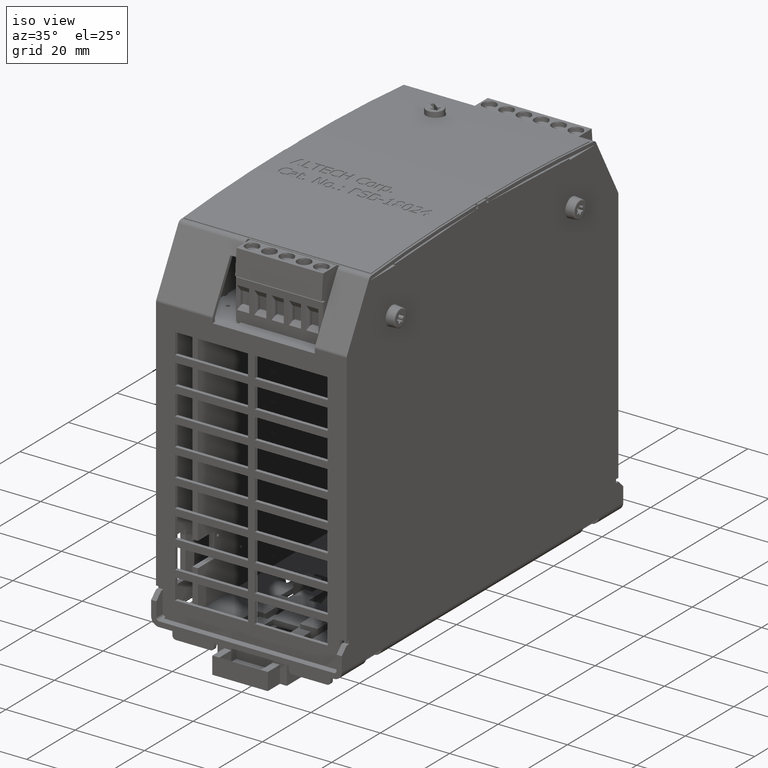
[diagram: clean part render]
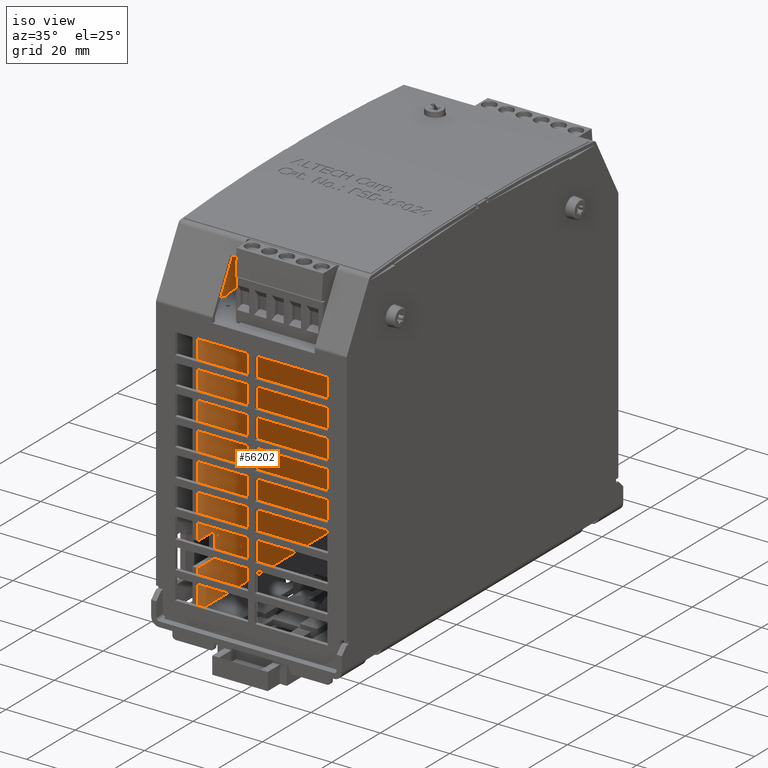
[diagram: same view with one face highlighted and labeled with its STEP entity id]
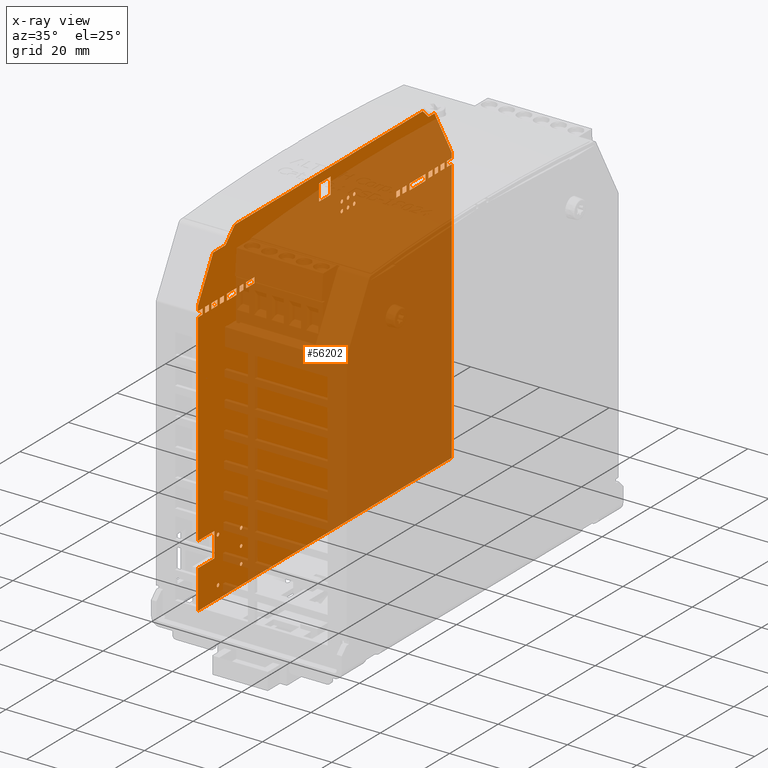
[diagram: x-ray of the same camera — body ghosted, the highlighted face saturated]
A machine part, iso view. The second image highlights one B-rep face of the part: STEP entity #56202.
The next image is the same camera in x-ray: the body ghosted, the highlighted face saturated — about 72% of this face is hidden behind the body in this view.
In plain terms, the highlighted planar face has unit normal (1, 0, 0).
Its self-contained STEP definition (entity closure, byte-faithful):
#27094=CARTESIAN_POINT('',(-0.70866141732277,1.942039370078739,3.169708661417326));
#27095=VERTEX_POINT('',#27094);
#27096=CARTESIAN_POINT('',(-0.70866141732277,1.87903937007874,3.169708661417326));
#27097=VERTEX_POINT('',#27096);
#27098=CARTESIAN_POINT('',(-0.70866141732277,1.942039370078739,3.169708661417326));
#27099=DIRECTION('',(0.0,-1.0,0.0));
#27100=VECTOR('',#27099,0.062999999999999);
#27101=LINE('',#27098,#27100);
#27102=EDGE_CURVE('',#27095,#27097,#27101,.T.);
#27120=CARTESIAN_POINT('',(-0.70866141732277,1.980039370078739,3.169708661417326));
#27121=VERTEX_POINT('',#27120);
#27128=CARTESIAN_POINT('',(-0.70866141732277,2.058897637795275,3.169708661417326));
#27129=VERTEX_POINT('',#27128);
#27130=CARTESIAN_POINT('',(-0.70866141732277,2.058897637795275,3.169708661417326));
#27131=DIRECTION('',(0.0,-1.0,0.0));
#27132=VECTOR('',#27131,0.078858267716536);
#27133=LINE('',#27130,#27132);
#27134=EDGE_CURVE('',#27129,#27121,#27133,.T.);
#27176=CARTESIAN_POINT('',(-0.70866141732277,1.159039370078739,3.169708661417326));
#27177=VERTEX_POINT('',#27176);
#27184=CARTESIAN_POINT('',(-0.70866141732277,1.219039370078739,3.169708661417326));
#27185=VERTEX_POINT('',#27184);
#27186=CARTESIAN_POINT('',(-0.70866141732277,1.21903937007874,3.169708661417326));
#27187=DIRECTION('',(0.0,-1.0,0.0));
#27188=VECTOR('',#27187,0.06);
#27189=LINE('',#27186,#27188);
#27190=EDGE_CURVE('',#27185,#27177,#27189,.T.);
#27208=CARTESIAN_POINT('',(-0.70866141732277,1.25903937007874,3.169708661417326));
#27209=VERTEX_POINT('',#27208);
#27216=CARTESIAN_POINT('',(-0.70866141732277,1.322039370078739,3.169708661417326));
#27217=VERTEX_POINT('',#27216);
#27218=CARTESIAN_POINT('',(-0.70866141732277,1.322039370078739,3.169708661417326));
#27219=DIRECTION('',(0.0,-1.0,0.0));
#27220=VECTOR('',#27219,0.063);
#27221=LINE('',#27218,#27220);
#27222=EDGE_CURVE('',#27217,#27209,#27221,.T.);
#27288=CARTESIAN_POINT('',(-0.70866141732277,1.67903937007874,3.169708661417326));
#27289=VERTEX_POINT('',#27288);
#27296=CARTESIAN_POINT('',(-0.70866141732277,1.74203937007874,3.169708661417326));
#27297=VERTEX_POINT('',#27296);
#27298=CARTESIAN_POINT('',(-0.70866141732277,1.74203937007874,3.169708661417326));
#27299=DIRECTION('',(0.0,-1.0,0.0));
#27300=VECTOR('',#27299,0.063);
#27301=LINE('',#27298,#27300);
#27302=EDGE_CURVE('',#27297,#27289,#27301,.T.);
#27320=CARTESIAN_POINT('',(-0.70866141732277,1.783039370078739,3.169708661417326));
#27321=VERTEX_POINT('',#27320);
#27328=CARTESIAN_POINT('',(-0.70866141732277,1.838039370078739,3.169708661417326));
#27329=VERTEX_POINT('',#27328);
#27330=CARTESIAN_POINT('',(-0.70866141732277,1.838039370078739,3.169708661417326));
#27331=DIRECTION('',(0.0,-1.0,0.0));
#27332=VECTOR('',#27331,0.055);
#27333=LINE('',#27330,#27332);
#27334=EDGE_CURVE('',#27329,#27321,#27333,.T.);
#32274=CARTESIAN_POINT('',(-0.70866141732277,1.87903937007874,3.232700787401578));
#32275=VERTEX_POINT('',#32274);
#32276=CARTESIAN_POINT('',(-0.70866141732277,1.942039370078739,3.232700787401578));
#32277=VERTEX_POINT('',#32276);
#32278=CARTESIAN_POINT('',(-0.70866141732277,1.87903937007874,3.232700787401578));
#32279=DIRECTION('',(0.0,1.0,0.0));
#32280=VECTOR('',#32279,0.062999999999999);
#32281=LINE('',#32278,#32280);
#32282=EDGE_CURVE('',#32275,#32277,#32281,.T.);
#32300=CARTESIAN_POINT('',(-0.70866141732277,1.838039370078739,3.232700787401578));
#32301=VERTEX_POINT('',#32300);
#32308=CARTESIAN_POINT('',(-0.70866141732277,1.783039370078739,3.232700787401578));
#32309=VERTEX_POINT('',#32308);
#32310=CARTESIAN_POINT('',(-0.70866141732277,1.783039370078739,3.232700787401578));
#32311=DIRECTION('',(0.0,1.0,0.0));
#32312=VECTOR('',#32311,0.055);
#32313=LINE('',#32310,#32312);
#32314=EDGE_CURVE('',#32309,#32301,#32313,.T.);
#32332=CARTESIAN_POINT('',(-0.70866141732277,1.74203937007874,3.232700787401578));
#32333=VERTEX_POINT('',#32332);
#32340=CARTESIAN_POINT('',(-0.70866141732277,1.67903937007874,3.232700787401578));
#32341=VERTEX_POINT('',#32340);
#32342=CARTESIAN_POINT('',(-0.70866141732277,1.67903937007874,3.232700787401578));
#32343=DIRECTION('',(0.0,1.0,0.0));
#32344=VECTOR('',#32343,0.063);
#32345=LINE('',#32342,#32344);
#32346=EDGE_CURVE('',#32341,#32333,#32345,.T.);
#32364=CARTESIAN_POINT('',(-0.70866141732277,1.620039370078739,3.232700787401578));
#32365=VERTEX_POINT('',#32364);
#32372=CARTESIAN_POINT('',(-0.70866141732277,1.382039370078739,3.232700787401578));
#32373=VERTEX_POINT('',#32372);
#32374=CARTESIAN_POINT('',(-0.70866141732277,1.382039370078739,3.232700787401578));
#32375=DIRECTION('',(0.0,1.0,0.0));
#32376=VECTOR('',#32375,0.238);
#32377=LINE('',#32374,#32376);
#32378=EDGE_CURVE('',#32373,#32365,#32377,.T.);
#32396=CARTESIAN_POINT('',(-0.70866141732277,1.322039370078739,3.232700787401578));
#32397=VERTEX_POINT('',#32396);
#32404=CARTESIAN_POINT('',(-0.70866141732277,1.25903937007874,3.232700787401578));
#32405=VERTEX_POINT('',#32404);
#32406=CARTESIAN_POINT('',(-0.70866141732277,1.25903937007874,3.232700787401578));
#32407=DIRECTION('',(0.0,1.0,0.0));
#32408=VECTOR('',#32407,0.063);
#32409=LINE('',#32406,#32408);
#32410=EDGE_CURVE('',#32405,#32397,#32409,.T.);
#32428=CARTESIAN_POINT('',(-0.70866141732277,1.219039370078739,3.232700787401578));
#32429=VERTEX_POINT('',#32428);
#32436=CARTESIAN_POINT('',(-0.70866141732277,1.159039370078739,3.232700787401578));
#32437=VERTEX_POINT('',#32436);
#32438=CARTESIAN_POINT('',(-0.70866141732277,1.15903937007874,3.232700787401578));
#32439=DIRECTION('',(0.0,1.0,0.0));
#32440=VECTOR('',#32439,0.06);
#32441=LINE('',#32438,#32440);
#32442=EDGE_CURVE('',#32437,#32429,#32441,.T.);
#32484=CARTESIAN_POINT('',(-0.70866141732277,2.058897637795275,3.232700787401578));
#32485=VERTEX_POINT('',#32484);
#32492=CARTESIAN_POINT('',(-0.70866141732277,1.980039370078739,3.232700787401578));
#32493=VERTEX_POINT('',#32492);
#32494=CARTESIAN_POINT('',(-0.70866141732277,1.980039370078739,3.232700787401578));
#32495=DIRECTION('',(0.0,1.0,0.0));
#32496=VECTOR('',#32495,0.078858267716536);
#32497=LINE('',#32494,#32496);
#32498=EDGE_CURVE('',#32493,#32485,#32497,.T.);
#41861=CARTESIAN_POINT('',(-0.70866141732277,1.87903937007874,3.169708661417326));
#41862=DIRECTION('',(0.0,0.0,1.0));
#41863=VECTOR('',#41862,0.062992125984252);
#41864=LINE('',#41861,#41863);
#41865=EDGE_CURVE('',#27097,#32275,#41864,.T.);
#41963=CARTESIAN_POINT('',(-0.70866141732277,1.67903937007874,3.169708661417326));
#41964=DIRECTION('',(0.0,0.0,1.0));
#41965=VECTOR('',#41964,0.062992125984252);
#41966=LINE('',#41963,#41965);
#41967=EDGE_CURVE('',#27289,#32341,#41966,.T.);
#42253=CARTESIAN_POINT('',(-0.70866141732277,1.25903937007874,3.169708661417326));
#42254=DIRECTION('',(0.0,0.0,1.0));
#42255=VECTOR('',#42254,0.062992125984252);
#42256=LINE('',#42253,#42255);
#42257=EDGE_CURVE('',#27209,#32405,#42256,.T.);
#42545=CARTESIAN_POINT('',(-0.70866141732277,1.980039370078739,3.169708661417326));
#42546=DIRECTION('',(0.0,0.0,1.0));
#42547=VECTOR('',#42546,0.062992125984252);
#42548=LINE('',#42545,#42547);
#42549=EDGE_CURVE('',#27121,#32493,#42548,.T.);
#42576=CARTESIAN_POINT('',(-0.70866141732277,1.942039370078739,3.232700787401578));
#42577=DIRECTION('',(0.0,0.0,-1.0));
#42578=VECTOR('',#42577,0.062992125984252);
#42579=LINE('',#42576,#42578);
#42580=EDGE_CURVE('',#32277,#27095,#42579,.T.);
#42623=CARTESIAN_POINT('',(-0.70866141732277,1.838039370078739,3.232700787401578));
#42624=DIRECTION('',(0.0,0.0,-1.0));
#42625=VECTOR('',#42624,0.062992125984252);
#42626=LINE('',#42623,#42625);
#42627=EDGE_CURVE('',#32301,#27329,#42626,.T.);
#42647=CARTESIAN_POINT('',(-0.70866141732277,1.783039370078739,3.169708661417326));
#42648=DIRECTION('',(0.0,0.0,1.0));
#42649=VECTOR('',#42648,0.062992125984252);
#42650=LINE('',#42647,#42649);
#42651=EDGE_CURVE('',#27321,#32309,#42650,.T.);
#42678=CARTESIAN_POINT('',(-0.70866141732277,1.74203937007874,3.232700787401578));
#42679=DIRECTION('',(0.0,0.0,-1.0));
#42680=VECTOR('',#42679,0.062992125984252);
#42681=LINE('',#42678,#42680);
#42682=EDGE_CURVE('',#32333,#27297,#42681,.T.);
#42840=CARTESIAN_POINT('',(-0.70866141732277,1.322039370078739,3.232700787401578));
#42841=DIRECTION('',(0.0,0.0,-1.0));
#42842=VECTOR('',#42841,0.062992125984252);
#42843=LINE('',#42840,#42842);
#42844=EDGE_CURVE('',#32397,#27217,#42843,.T.);
#42887=CARTESIAN_POINT('',(-0.70866141732277,1.219039370078739,3.232700787401578));
#42888=DIRECTION('',(0.0,0.0,-1.0));
#42889=VECTOR('',#42888,0.062992125984252);
#42890=LINE('',#42887,#42889);
#42891=EDGE_CURVE('',#32429,#27185,#42890,.T.);
#42911=CARTESIAN_POINT('',(-0.70866141732277,1.159039370078739,3.169708661417326));
#42912=DIRECTION('',(0.0,0.0,1.0));
#42913=VECTOR('',#42912,0.062992125984252);
#42914=LINE('',#42911,#42913);
#42915=EDGE_CURVE('',#27177,#32437,#42914,.T.);
#42989=CARTESIAN_POINT('',(-0.70866141732277,1.372897637795275,3.232700787401578));
#42990=VERTEX_POINT('',#42989);
#42991=CARTESIAN_POINT('',(-0.70866141732277,1.372897637795275,3.232700787401578));
#42992=DIRECTION('',(0.0,1.0,0.0));
#42993=VECTOR('',#42992,0.009141732283465);
#42994=LINE('',#42991,#42993);
#42995=EDGE_CURVE('',#42990,#32373,#42994,.T.);
#43028=CARTESIAN_POINT('',(-0.70866141732277,1.628897637795275,3.232700787401578));
#43029=VERTEX_POINT('',#43028);
#43036=CARTESIAN_POINT('',(-0.70866141732277,1.620039370078739,3.232700787401578));
#43037=DIRECTION('',(0.0,1.0,0.0));
#43038=VECTOR('',#43037,0.008858267716536);
#43039=LINE('',#43036,#43038);
#43040=EDGE_CURVE('',#32365,#43029,#43039,.T.);
#51765=CARTESIAN_POINT('',(-0.70866141732277,-1.31924409448819,3.169708661417326));
#51766=VERTEX_POINT('',#51765);
#51767=CARTESIAN_POINT('',(-0.70866141732277,-1.38224409448819,3.169708661417326));
#51768=VERTEX_POINT('',#51767);
#51769=CARTESIAN_POINT('',(-0.70866141732277,-1.31924409448819,3.169708661417326));
#51770=DIRECTION('',(0.0,-1.0,0.0));
#51771=VECTOR('',#51770,0.063);
#51772=LINE('',#51769,#51771);
#51773=EDGE_CURVE('',#51766,#51768,#51772,.T.);
#51791=CARTESIAN_POINT('',(-0.70866141732277,-1.27624409448819,3.169708661417326));
#51792=VERTEX_POINT('',#51791);
#51799=CARTESIAN_POINT('',(-0.70866141732277,-1.141244094488189,3.169708661417326));
#51800=VERTEX_POINT('',#51799);
#51801=CARTESIAN_POINT('',(-0.70866141732277,-1.141244094488189,3.169708661417326));
#51802=DIRECTION('',(0.0,-1.0,0.0));
#51803=VECTOR('',#51802,0.135);
#51804=LINE('',#51801,#51803);
#51805=EDGE_CURVE('',#51800,#51792,#51804,.T.);
#51855=CARTESIAN_POINT('',(-0.70866141732277,-2.059102362204726,3.169708661417326));
#51856=VERTEX_POINT('',#51855);
#51863=CARTESIAN_POINT('',(-0.70866141732277,-1.98324409448819,3.169708661417326));
#51864=VERTEX_POINT('',#51863);
#51865=CARTESIAN_POINT('',(-0.70866141732277,-1.98324409448819,3.169708661417326));
#51866=DIRECTION('',(0.0,-1.0,0.0));
#51867=VECTOR('',#51866,0.075858267716536);
#51868=LINE('',#51865,#51867);
#51869=EDGE_CURVE('',#51864,#51856,#51868,.T.);
#51887=CARTESIAN_POINT('',(-0.70866141732277,-1.942244094488189,3.169708661417326));
#51888=VERTEX_POINT('',#51887);
#51895=CARTESIAN_POINT('',(-0.70866141732277,-1.87924409448819,3.169708661417326));
#51896=VERTEX_POINT('',#51895);
#51897=CARTESIAN_POINT('',(-0.70866141732277,-1.87924409448819,3.169708661417326));
#51898=DIRECTION('',(0.0,-1.0,0.0));
#51899=VECTOR('',#51898,0.063);
#51900=LINE('',#51897,#51899);
#51901=EDGE_CURVE('',#51896,#51888,#51900,.T.);
#51919=CARTESIAN_POINT('',(-0.70866141732277,-1.84024409448819,3.169708661417326));
#51920=VERTEX_POINT('',#51919);
#51927=CARTESIAN_POINT('',(-0.70866141732277,-1.74224409448819,3.169708661417326));
#51928=VERTEX_POINT('',#51927);
#51929=CARTESIAN_POINT('',(-0.70866141732277,-1.74224409448819,3.169708661417326));
#51930=DIRECTION('',(0.0,-1.0,0.0));
#51931=VECTOR('',#51930,0.098);
#51932=LINE('',#51929,#51931);
#51933=EDGE_CURVE('',#51928,#51920,#51932,.T.);
#51951=CARTESIAN_POINT('',(-0.70866141732277,-1.70324409448819,3.169708661417326));
#51952=VERTEX_POINT('',#51951);
#51959=CARTESIAN_POINT('',(-0.70866141732277,-1.64024409448819,3.169708661417326));
#51960=VERTEX_POINT('',#51959);
#51961=CARTESIAN_POINT('',(-0.70866141732277,-1.640244094488189,3.169708661417326));
#51962=DIRECTION('',(0.0,-1.0,0.0));
#51963=VECTOR('',#51962,0.063);
#51964=LINE('',#51961,#51963);
#51965=EDGE_CURVE('',#51960,#51952,#51964,.T.);
#52332=CARTESIAN_POINT('',(-0.70866141732277,-1.38224409448819,3.232700787401578));
#52333=VERTEX_POINT('',#52332);
#52334=CARTESIAN_POINT('',(-0.70866141732277,-1.31924409448819,3.232700787401578));
#52335=VERTEX_POINT('',#52334);
#52336=CARTESIAN_POINT('',(-0.70866141732277,-1.38224409448819,3.232700787401578));
#52337=DIRECTION('',(0.0,1.0,0.0));
#52338=VECTOR('',#52337,0.063);
#52339=LINE('',#52336,#52338);
#52340=EDGE_CURVE('',#52333,#52335,#52339,.T.);
#52358=CARTESIAN_POINT('',(-0.70866141732277,-1.43924409448819,3.232700787401578));
#52359=VERTEX_POINT('',#52358);
#52366=CARTESIAN_POINT('',(-0.70866141732277,-1.58024409448819,3.232700787401578));
#52367=VERTEX_POINT('',#52366);
#52368=CARTESIAN_POINT('',(-0.70866141732277,-1.58024409448819,3.232700787401578));
#52369=DIRECTION('',(0.0,1.0,0.0));
#52370=VECTOR('',#52369,0.141);
#52371=LINE('',#52368,#52370);
#52372=EDGE_CURVE('',#52367,#52359,#52371,.T.);
#52390=CARTESIAN_POINT('',(-0.70866141732277,-1.64024409448819,3.232700787401578));
#52391=VERTEX_POINT('',#52390);
#52398=CARTESIAN_POINT('',(-0.70866141732277,-1.70324409448819,3.232700787401578));
#52399=VERTEX_POINT('',#52398);
#52400=CARTESIAN_POINT('',(-0.70866141732277,-1.70324409448819,3.232700787401578));
#52401=DIRECTION('',(0.0,1.0,0.0));
#52402=VECTOR('',#52401,0.063);
#52403=LINE('',#52400,#52402);
#52404=EDGE_CURVE('',#52399,#52391,#52403,.T.);
#52422=CARTESIAN_POINT('',(-0.70866141732277,-1.74224409448819,3.232700787401578));
#52423=VERTEX_POINT('',#52422);
#52430=CARTESIAN_POINT('',(-0.70866141732277,-1.84024409448819,3.232700787401578));
#52431=VERTEX_POINT('',#52430);
#52432=CARTESIAN_POINT('',(-0.70866141732277,-1.84024409448819,3.232700787401578));
#52433=DIRECTION('',(0.0,1.0,0.0));
#52434=VECTOR('',#52433,0.098);
#52435=LINE('',#52432,#52434);
#52436=EDGE_CURVE('',#52431,#52423,#52435,.T.);
#52454=CARTESIAN_POINT('',(-0.70866141732277,-1.87924409448819,3.232700787401578));
#52455=VERTEX_POINT('',#52454);
#52462=CARTESIAN_POINT('',(-0.70866141732277,-1.942244094488189,3.232700787401578));
#52463=VERTEX_POINT('',#52462);
#52464=CARTESIAN_POINT('',(-0.70866141732277,-1.942244094488189,3.232700787401578));
#52465=DIRECTION('',(0.0,1.0,0.0));
#52466=VECTOR('',#52465,0.063);
#52467=LINE('',#52464,#52466);
#52468=EDGE_CURVE('',#52463,#52455,#52467,.T.);
#52486=CARTESIAN_POINT('',(-0.70866141732277,-1.98324409448819,3.232700787401578));
#52487=VERTEX_POINT('',#52486);
#52494=CARTESIAN_POINT('',(-0.70866141732277,-2.059102362204726,3.232700787401578));
#52495=VERTEX_POINT('',#52494);
#52496=CARTESIAN_POINT('',(-0.70866141732277,-2.059102362204726,3.232700787401578));
#52497=DIRECTION('',(0.0,1.0,0.0));
#52498=VECTOR('',#52497,0.075858267716536);
#52499=LINE('',#52496,#52498);
#52500=EDGE_CURVE('',#52495,#52487,#52499,.T.);
#52550=CARTESIAN_POINT('',(-0.70866141732277,-1.141244094488189,3.232700787401578));
#52551=VERTEX_POINT('',#52550);
#52558=CARTESIAN_POINT('',(-0.70866141732277,-1.27624409448819,3.232700787401578));
#52559=VERTEX_POINT('',#52558);
#52560=CARTESIAN_POINT('',(-0.70866141732277,-1.276244094488189,3.232700787401578));
#52561=DIRECTION('',(0.0,1.0,0.0));
#52562=VECTOR('',#52561,0.135);
#52563=LINE('',#52560,#52562);
#52564=EDGE_CURVE('',#52559,#52551,#52563,.T.);
#54551=CARTESIAN_POINT('',(-0.70866141732277,-1.31924409448819,3.232700787401578));
#54552=DIRECTION('',(0.0,0.0,-1.0));
#54553=VECTOR('',#54552,0.062992125984252);
#54554=LINE('',#54551,#54553);
#54555=EDGE_CURVE('',#52335,#51766,#54554,.T.);
#54573=CARTESIAN_POINT('',(-0.70866141732277,-1.38224409448819,3.169708661417326));
#54574=DIRECTION('',(0.0,0.0,1.0));
#54575=VECTOR('',#54574,0.062992125984252);
#54576=LINE('',#54573,#54575);
#54577=EDGE_CURVE('',#51768,#52333,#54576,.T.);
#54635=CARTESIAN_POINT('',(-0.70866141732277,-1.64024409448819,3.232700787401578));
#54636=DIRECTION('',(0.0,0.0,-1.0));
#54637=VECTOR('',#54636,0.062992125984252);
#54638=LINE('',#54635,#54637);
#54639=EDGE_CURVE('',#52391,#51960,#54638,.T.);
#54657=CARTESIAN_POINT('',(-0.70866141732277,-1.70324409448819,3.169708661417326));
#54658=DIRECTION('',(0.0,0.0,1.0));
#54659=VECTOR('',#54658,0.062992125984252);
#54660=LINE('',#54657,#54659);
#54661=EDGE_CURVE('',#51952,#52399,#54660,.T.);
#54719=CARTESIAN_POINT('',(-0.70866141732277,-1.84024409448819,3.169708661417326));
#54720=DIRECTION('',(0.0,0.0,1.0));
#54721=VECTOR('',#54720,0.062992125984252);
#54722=LINE('',#54719,#54721);
#54723=EDGE_CURVE('',#51920,#52431,#54722,.T.);
#54741=CARTESIAN_POINT('',(-0.70866141732277,-1.87924409448819,3.232700787401578));
#54742=DIRECTION('',(0.0,0.0,-1.0));
#54743=VECTOR('',#54742,0.062992125984252);
#54744=LINE('',#54741,#54743);
#54745=EDGE_CURVE('',#52455,#51896,#54744,.T.);
#54992=CARTESIAN_POINT('',(-0.70866141732277,-1.942244094488189,3.169708661417326));
#54993=DIRECTION('',(0.0,0.0,1.0));
#54994=VECTOR('',#54993,0.062992125984252);
#54995=LINE('',#54992,#54994);
#54996=EDGE_CURVE('',#51888,#52463,#54995,.T.);
#55270=CARTESIAN_POINT('',(-0.70866141732277,-1.27624409448819,3.169708661417326));
#55271=DIRECTION('',(0.0,0.0,1.0));
#55272=VECTOR('',#55271,0.062992125984252);
#55273=LINE('',#55270,#55272);
#55274=EDGE_CURVE('',#51792,#52559,#55273,.T.);
#55523=CARTESIAN_POINT('',(-0.70866141732277,-1.74224409448819,3.232700787401578));
#55524=DIRECTION('',(0.0,0.0,-1.0));
#55525=VECTOR('',#55524,0.062992125984252);
#55526=LINE('',#55523,#55525);
#55527=EDGE_CURVE('',#52423,#51928,#55526,.T.);
#55604=CARTESIAN_POINT('',(-0.70866141732277,-1.98324409448819,3.232700787401578));
#55605=DIRECTION('',(0.0,0.0,-1.0));
#55606=VECTOR('',#55605,0.062992125984252);
#55607=LINE('',#55604,#55606);
#55608=EDGE_CURVE('',#52487,#51864,#55607,.T.);
#55706=CARTESIAN_POINT('',(-0.70866141732277,-1.141244094488189,3.232700787401578));
#55707=DIRECTION('',(0.0,0.0,-1.0));
#55708=VECTOR('',#55707,0.062992125984252);
#55709=LINE('',#55706,#55708);
#55710=EDGE_CURVE('',#52551,#51800,#55709,.T.);
#55740=CARTESIAN_POINT('',(-0.70866141732277,-1.589102362204726,3.232700787401578));
#55741=VERTEX_POINT('',#55740);
#55742=CARTESIAN_POINT('',(-0.70866141732277,-1.589102362204726,3.232700787401578));
#55743=DIRECTION('',(0.0,1.0,0.0));
#55744=VECTOR('',#55743,0.008858267716536);
#55745=LINE('',#55742,#55744);
#55746=EDGE_CURVE('',#55741,#52367,#55745,.T.);
#55779=CARTESIAN_POINT('',(-0.70866141732277,-1.430102362204726,3.232700787401578));
#55780=VERTEX_POINT('',#55779);
#55787=CARTESIAN_POINT('',(-0.70866141732277,-1.43924409448819,3.232700787401578));
#55788=DIRECTION('',(0.0,1.0,0.0));
#55789=VECTOR('',#55788,0.009141732283464);
#55790=LINE('',#55787,#55789);
#55791=EDGE_CURVE('',#52359,#55780,#55790,.T.);
#55796=CARTESIAN_POINT('',(-0.70866141732277,-0.059537754415367,1.909981687824869));
#55797=DIRECTION('',(1.0,0.0,0.0));
#55798=DIRECTION('',(0.0,0.0,-1.0));
#55799=AXIS2_PLACEMENT_3D('',#55796,#55797,#55798);
#55800=PLANE('',#55799);
#55801=ORIENTED_EDGE('',*,*,#32498,.T.);
#55802=CARTESIAN_POINT('',(-0.70866141732277,2.058897637795275,3.288700787401578));
#55803=VERTEX_POINT('',#55802);
#55804=CARTESIAN_POINT('',(-0.70866141732277,2.058897637795276,3.232700787401578));
#55805=DIRECTION('',(0.0,0.0,1.0));
#55806=VECTOR('',#55805,0.056);
#55807=LINE('',#55804,#55806);
#55808=EDGE_CURVE('',#32485,#55803,#55807,.T.);
#55809=ORIENTED_EDGE('',*,*,#55808,.T.);
#55810=CARTESIAN_POINT('',(-0.70866141732277,1.777897637795275,3.798700787401578));
#55811=VERTEX_POINT('',#55810);
#55812=CARTESIAN_POINT('',(-0.70866141732277,2.058897637795275,3.288700787401578));
#55813=DIRECTION('',(0.0,-0.482577868247516,0.875853070484818));
#55814=VECTOR('',#55813,0.58228944692481);
#55815=LINE('',#55812,#55814);
#55816=EDGE_CURVE('',#55803,#55811,#55815,.T.);
#55817=ORIENTED_EDGE('',*,*,#55816,.T.);
#55818=CARTESIAN_POINT('',(-0.70866141732277,1.681897637795276,3.798700787401578));
#55819=VERTEX_POINT('',#55818);
#55820=CARTESIAN_POINT('',(-0.70866141732277,1.777897637795275,3.798700787401578));
#55821=DIRECTION('',(0.0,-1.0,0.0));
#55822=VECTOR('',#55821,0.095999999999999);
#55823=LINE('',#55820,#55822);
#55824=EDGE_CURVE('',#55811,#55819,#55823,.T.);
#55825=ORIENTED_EDGE('',*,*,#55824,.T.);
#55826=CARTESIAN_POINT('',(-0.70866141732277,1.586897637795275,3.893700787401578));
#55827=VERTEX_POINT('',#55826);
#55828=CARTESIAN_POINT('',(-0.70866141732277,1.681897637795276,3.798700787401578));
#55829=DIRECTION('',(0.0,-0.707106781186552,0.707106781186543));
#55830=VECTOR('',#55829,0.134350288425444);
#55831=LINE('',#55828,#55830);
#55832=EDGE_CURVE('',#55819,#55827,#55831,.T.);
#55833=ORIENTED_EDGE('',*,*,#55832,.T.);
#55834=CARTESIAN_POINT('',(-0.70866141732277,-1.460102362204726,3.893700787401578));
#55835=VERTEX_POINT('',#55834);
#55836=CARTESIAN_POINT('',(-0.70866141732277,1.586897637795275,3.893700787401578));
#55837=DIRECTION('',(0.0,-1.0,0.0));
#55838=VECTOR('',#55837,3.047000000000002);
#55839=LINE('',#55836,#55838);
#55840=EDGE_CURVE('',#55827,#55835,#55839,.T.);
#55841=ORIENTED_EDGE('',*,*,#55840,.T.);
#55842=CARTESIAN_POINT('',(-0.70866141732277,-1.613102362204725,3.740700787401578));
#55843=VERTEX_POINT('',#55842);
#55844=CARTESIAN_POINT('',(-0.70866141732277,-1.460102362204726,3.893700787401578));
#55845=DIRECTION('',(0.0,-0.707106781186549,-0.707106781186546));
#55846=VECTOR('',#55845,0.216374675043083);
#55847=LINE('',#55844,#55846);
#55848=EDGE_CURVE('',#55835,#55843,#55847,.T.);
#55849=ORIENTED_EDGE('',*,*,#55848,.T.);
#55850=CARTESIAN_POINT('',(-0.70866141732277,-1.812102362204725,3.740700787401578));
#55851=VERTEX_POINT('',#55850);
#55852=CARTESIAN_POINT('',(-0.70866141732277,-1.613102362204725,3.740700787401578));
#55853=DIRECTION('',(0.0,-1.0,0.0));
#55854=VECTOR('',#55853,0.199);
#55855=LINE('',#55852,#55854);
#55856=EDGE_CURVE('',#55843,#55851,#55855,.T.);
#55857=ORIENTED_EDGE('',*,*,#55856,.T.);
#55858=CARTESIAN_POINT('',(-0.70866141732277,-2.059102362204726,3.288700787401578));
#55859=VERTEX_POINT('',#55858);
#55860=CARTESIAN_POINT('',(-0.70866141732277,-1.812102362204725,3.740700787401578));
#55861=DIRECTION('',(0.0,-0.479532104203179,-0.877524336436587));
#55862=VECTOR('',#55861,0.515085429807523);
#55863=LINE('',#55860,#55862);
#55864=EDGE_CURVE('',#55851,#55859,#55863,.T.);
#55865=ORIENTED_EDGE('',*,*,#55864,.T.);
#55866=CARTESIAN_POINT('',(-0.70866141732277,-2.059102362204726,3.288700787401578));
#55867=DIRECTION('',(0.0,0.0,-1.0));
#55868=VECTOR('',#55867,0.056);
#55869=LINE('',#55866,#55868);
#55870=EDGE_CURVE('',#55859,#52495,#55869,.T.);
#55871=ORIENTED_EDGE('',*,*,#55870,.T.);
#55872=ORIENTED_EDGE('',*,*,#52500,.T.);
#55873=ORIENTED_EDGE('',*,*,#55608,.T.);
#55874=ORIENTED_EDGE('',*,*,#51869,.T.);
#55875=CARTESIAN_POINT('',(-0.70866141732277,-2.059102362204726,0.874700787401578));
#55876=VERTEX_POINT('',#55875);
#55877=CARTESIAN_POINT('',(-0.70866141732277,-2.059102362204726,3.169708661417326));
#55878=DIRECTION('',(0.0,0.0,-1.0));
#55879=VECTOR('',#55878,2.295007874015748);
#55880=LINE('',#55877,#55879);
#55881=EDGE_CURVE('',#51856,#55876,#55880,.T.);
#55882=ORIENTED_EDGE('',*,*,#55881,.T.);
#55883=CARTESIAN_POINT('',(-0.70866141732277,-1.790102362204725,0.874700787401578));
#55884=VERTEX_POINT('',#55883);
#55885=CARTESIAN_POINT('',(-0.70866141732277,-2.059102362204726,0.874700787401578));
#55886=DIRECTION('',(0.0,1.0,0.0));
#55887=VECTOR('',#55886,0.269000000000001);
#55888=LINE('',#55885,#55887);
#55889=EDGE_CURVE('',#55876,#55884,#55888,.T.);
#55890=ORIENTED_EDGE('',*,*,#55889,.T.);
#55891=CARTESIAN_POINT('',(-0.70866141732277,-1.790102362204725,0.59470078740158));
#55892=VERTEX_POINT('',#55891);
#55893=CARTESIAN_POINT('',(-0.70866141732277,-1.790102362204725,0.874700787401578));
#55894=DIRECTION('',(0.0,0.0,-1.0));
#55895=VECTOR('',#55894,0.279999999999998);
#55896=LINE('',#55893,#55895);
#55897=EDGE_CURVE('',#55884,#55892,#55896,.T.);
#55898=ORIENTED_EDGE('',*,*,#55897,.T.);
#55899=CARTESIAN_POINT('',(-0.70866141732277,-2.059102362204726,0.59470078740158));
#55900=VERTEX_POINT('',#55899);
#55901=CARTESIAN_POINT('',(-0.70866141732277,-1.790102362204725,0.59470078740158));
#55902=DIRECTION('',(0.0,-1.0,0.0));
#55903=VECTOR('',#55902,0.269000000000001);
#55904=LINE('',#55901,#55903);
#55905=EDGE_CURVE('',#55892,#55900,#55904,.T.);
#55906=ORIENTED_EDGE('',*,*,#55905,.T.);
#55907=CARTESIAN_POINT('',(-0.70866141732277,-2.059102362204726,0.154700787401577));
#55908=VERTEX_POINT('',#55907);
#55909=CARTESIAN_POINT('',(-0.70866141732277,-2.059102362204726,0.59470078740158));
#55910=DIRECTION('',(0.0,0.0,-1.0));
#55911=VECTOR('',#55910,0.440000000000003);
#55912=LINE('',#55909,#55911);
#55913=EDGE_CURVE('',#55900,#55908,#55912,.T.);
#55914=ORIENTED_EDGE('',*,*,#55913,.T.);
#55915=CARTESIAN_POINT('',(-0.70866141732277,2.058897637795276,0.154700787401577));
#55916=VERTEX_POINT('',#55915);
#55917=CARTESIAN_POINT('',(-0.70866141732277,-2.059102362204726,0.154700787401577));
#55918=DIRECTION('',(0.0,1.0,0.0));
#55919=VECTOR('',#55918,4.118000000000001);
#55920=LINE('',#55917,#55919);
#55921=EDGE_CURVE('',#55908,#55916,#55920,.T.);
#55922=ORIENTED_EDGE('',*,*,#55921,.T.);
#55923=CARTESIAN_POINT('',(-0.70866141732277,2.058897637795276,0.154700787401577));
#55924=DIRECTION('',(0.0,0.0,1.0));
#55925=VECTOR('',#55924,3.015007874015748);
#55926=LINE('',#55923,#55925);
#55927=EDGE_CURVE('',#55916,#27129,#55926,.T.);
#55928=ORIENTED_EDGE('',*,*,#55927,.T.);
#55929=ORIENTED_EDGE('',*,*,#27134,.T.);
#55930=ORIENTED_EDGE('',*,*,#42549,.T.);
#55931=EDGE_LOOP('',(#55801,#55809,#55817,#55825,#55833,#55841,#55849,#55857,#55865,#55871,#55872,#55873,#55874,#55882,#55890,#55898,#55906,#55914,#55922,#55928,#55929,#55930));
#55932=FACE_OUTER_BOUND('',#55931,.T.);
#55933=ORIENTED_EDGE('',*,*,#41865,.T.);
#55934=ORIENTED_EDGE('',*,*,#32282,.T.);
#55935=ORIENTED_EDGE('',*,*,#42580,.T.);
#55936=ORIENTED_EDGE('',*,*,#27102,.T.);
#55937=EDGE_LOOP('',(#55933,#55934,#55935,#55936));
#55938=FACE_BOUND('',#55937,.T.);
#55939=ORIENTED_EDGE('',*,*,#42651,.T.);
#55940=ORIENTED_EDGE('',*,*,#32314,.T.);
#55941=ORIENTED_EDGE('',*,*,#42627,.T.);
#55942=ORIENTED_EDGE('',*,*,#27334,.T.);
#55943=EDGE_LOOP('',(#55939,#55940,#55941,#55942));
#55944=FACE_BOUND('',#55943,.T.);
#55945=ORIENTED_EDGE('',*,*,#41967,.T.);
#55946=ORIENTED_EDGE('',*,*,#32346,.T.);
#55947=ORIENTED_EDGE('',*,*,#42682,.T.);
#55948=ORIENTED_EDGE('',*,*,#27302,.T.);
#55949=EDGE_LOOP('',(#55945,#55946,#55947,#55948));
#55950=FACE_BOUND('',#55949,.T.);
#55951=ORIENTED_EDGE('',*,*,#42257,.T.);
#55952=ORIENTED_EDGE('',*,*,#32410,.T.);
#55953=ORIENTED_EDGE('',*,*,#42844,.T.);
#55954=ORIENTED_EDGE('',*,*,#27222,.T.);
#55955=EDGE_LOOP('',(#55951,#55952,#55953,#55954));
#55956=FACE_BOUND('',#55955,.T.);
#55957=ORIENTED_EDGE('',*,*,#42915,.T.);
#55958=ORIENTED_EDGE('',*,*,#32442,.T.);
#55959=ORIENTED_EDGE('',*,*,#42891,.T.);
#55960=ORIENTED_EDGE('',*,*,#27190,.T.);
#55961=EDGE_LOOP('',(#55957,#55958,#55959,#55960));
#55962=FACE_BOUND('',#55961,.T.);
#55963=CARTESIAN_POINT('',(-0.70866141732277,-1.589102362204726,3.161700787401577));
#55964=VERTEX_POINT('',#55963);
#55965=CARTESIAN_POINT('',(-0.70866141732277,-1.589102362204726,3.161700787401577));
#55966=DIRECTION('',(0.0,0.0,1.0));
#55967=VECTOR('',#55966,0.071000000000001);
#55968=LINE('',#55965,#55967);
#55969=EDGE_CURVE('',#55964,#55741,#55968,.T.);
#55970=ORIENTED_EDGE('',*,*,#55969,.T.);
#55971=ORIENTED_EDGE('',*,*,#55746,.T.);
#55972=ORIENTED_EDGE('',*,*,#52372,.T.);
#55973=ORIENTED_EDGE('',*,*,#55791,.T.);
#55974=CARTESIAN_POINT('',(-0.70866141732277,-1.430102362204726,3.161700787401577));
#55975=VERTEX_POINT('',#55974);
#55976=CARTESIAN_POINT('',(-0.70866141732277,-1.430102362204726,3.232700787401578));
#55977=DIRECTION('',(0.0,0.0,-1.0));
#55978=VECTOR('',#55977,0.071000000000001);
#55979=LINE('',#55976,#55978);
#55980=EDGE_CURVE('',#55780,#55975,#55979,.T.);
#55981=ORIENTED_EDGE('',*,*,#55980,.T.);
#55982=CARTESIAN_POINT('',(-0.70866141732277,-1.430102362204726,3.161700787401577));
#55983=DIRECTION('',(0.0,-1.0,0.0));
#55984=VECTOR('',#55983,0.159);
#55985=LINE('',#55982,#55984);
#55986=EDGE_CURVE('',#55975,#55964,#55985,.T.);
#55987=ORIENTED_EDGE('',*,*,#55986,.T.);
#55988=EDGE_LOOP('',(#55970,#55971,#55972,#55973,#55981,#55987));
#55989=FACE_BOUND('',#55988,.T.);
#55990=CARTESIAN_POINT('',(-0.70866141732277,1.372897637795275,3.161700787401577));
#55991=VERTEX_POINT('',#55990);
#55992=CARTESIAN_POINT('',(-0.70866141732277,1.372897637795275,3.161700787401577));
#55993=DIRECTION('',(0.0,0.0,1.0));
#55994=VECTOR('',#55993,0.071000000000001);
#55995=LINE('',#55992,#55994);
#55996=EDGE_CURVE('',#55991,#42990,#55995,.T.);
#55997=ORIENTED_EDGE('',*,*,#55996,.T.);
#55998=ORIENTED_EDGE('',*,*,#42995,.T.);
#55999=ORIENTED_EDGE('',*,*,#32378,.T.);
#56000=ORIENTED_EDGE('',*,*,#43040,.T.);
#56001=CARTESIAN_POINT('',(-0.70866141732277,1.628897637795275,3.161700787401577));
#56002=VERTEX_POINT('',#56001);
#56003=CARTESIAN_POINT('',(-0.70866141732277,1.628897637795275,3.232700787401578));
#56004=DIRECTION('',(0.0,0.0,-1.0));
#56005=VECTOR('',#56004,0.071000000000001);
#56006=LINE('',#56003,#56005);
#56007=EDGE_CURVE('',#43029,#56002,#56006,.T.);
#56008=ORIENTED_EDGE('',*,*,#56007,.T.);
#56009=CARTESIAN_POINT('',(-0.70866141732277,1.628897637795275,3.161700787401577));
#56010=DIRECTION('',(0.0,-1.0,0.0));
#56011=VECTOR('',#56010,0.256);
#56012=LINE('',#56009,#56011);
#56013=EDGE_CURVE('',#56002,#55991,#56012,.T.);
#56014=ORIENTED_EDGE('',*,*,#56013,.T.);
#56015=EDGE_LOOP('',(#55997,#55998,#55999,#56000,#56008,#56014));
#56016=FACE_BOUND('',#56015,.T.);
#56017=CARTESIAN_POINT('',(-0.70866141732277,-0.094102362204726,3.793700787401575));
#56018=VERTEX_POINT('',#56017);
#56019=CARTESIAN_POINT('',(-0.70866141732277,0.093897637795274,3.793700787401575));
#56020=VERTEX_POINT('',#56019);
#56021=CARTESIAN_POINT('',(-0.70866141732277,-0.094102362204726,3.793700787401575));
#56022=DIRECTION('',(0.0,1.0,0.0));
#56023=VECTOR('',#56022,0.187999999999999);
#56024=LINE('',#56021,#56023);
#56025=EDGE_CURVE('',#56018,#56020,#56024,.T.);
#56026=ORIENTED_EDGE('',*,*,#56025,.T.);
#56027=CARTESIAN_POINT('',(-0.70866141732277,0.093897637795274,3.607700787401577));
#56028=VERTEX_POINT('',#56027);
#56029=CARTESIAN_POINT('',(-0.70866141732277,0.093897637795274,3.793700787401575));
#56030=DIRECTION('',(0.0,0.0,-1.0));
#56031=VECTOR('',#56030,0.185999999999998);
#56032=LINE('',#56029,#56031);
#56033=EDGE_CURVE('',#56020,#56028,#56032,.T.);
#56034=ORIENTED_EDGE('',*,*,#56033,.T.);
#56035=CARTESIAN_POINT('',(-0.70866141732277,-0.094102362204726,3.607700787401577));
#56036=VERTEX_POINT('',#56035);
#56037=CARTESIAN_POINT('',(-0.70866141732277,0.093897637795274,3.607700787401577));
#56038=DIRECTION('',(0.0,-1.0,0.0));
#56039=VECTOR('',#56038,0.187999999999999);
#56040=LINE('',#56037,#56039);
#56041=EDGE_CURVE('',#56028,#56036,#56040,.T.);
#56042=ORIENTED_EDGE('',*,*,#56041,.T.);
#56043=CARTESIAN_POINT('',(-0.70866141732277,-0.094102362204726,3.607700787401577));
#56044=DIRECTION('',(0.0,0.0,1.0));
#56045=VECTOR('',#56044,0.185999999999998);
#56046=LINE('',#56043,#56045);
#56047=EDGE_CURVE('',#56036,#56018,#56046,.T.);
#56048=ORIENTED_EDGE('',*,*,#56047,.T.);
#56049=EDGE_LOOP('',(#56026,#56034,#56042,#56048));
#56050=FACE_BOUND('',#56049,.T.);
#56051=CARTESIAN_POINT('',(-0.70866141732277,0.475897637795275,3.348065748031499));
#56052=VERTEX_POINT('',#56051);
#56053=CARTESIAN_POINT('',(-0.70866141732277,0.475897637795275,3.367750787401577));
#56054=DIRECTION('',(-1.0,0.0,0.0));
#56055=DIRECTION('',(0.0,0.0,-1.0));
#56056=AXIS2_PLACEMENT_3D('',#56053,#56054,#56055);
#56057=CIRCLE('',#56056,0.019685039370079);
#56058=EDGE_CURVE('',#56052,#56052,#56057,.T.);
#56059=ORIENTED_EDGE('',*,*,#56058,.T.);
#56060=EDGE_LOOP('',(#56059));
#56061=FACE_BOUND('',#56060,.T.);
#56062=CARTESIAN_POINT('',(-0.70866141732277,0.375897637795274,3.348065748031499));
#56063=VERTEX_POINT('',#56062);
#56064=CARTESIAN_POINT('',(-0.70866141732277,0.375897637795274,3.367750787401577));
#56065=DIRECTION('',(-1.0,0.0,0.0));
#56066=DIRECTION('',(0.0,0.0,-1.0));
#56067=AXIS2_PLACEMENT_3D('',#56064,#56065,#56066);
#56068=CIRCLE('',#56067,0.019685039370079);
#56069=EDGE_CURVE('',#56063,#56063,#56068,.T.);
#56070=ORIENTED_EDGE('',*,*,#56069,.T.);
#56071=EDGE_LOOP('',(#56070));
#56072=FACE_BOUND('',#56071,.T.);
#56073=CARTESIAN_POINT('',(-0.70866141732277,0.275897637795274,3.348065748031499));
#56074=VERTEX_POINT('',#56073);
#56075=CARTESIAN_POINT('',(-0.70866141732277,0.275897637795274,3.367750787401577));
#56076=DIRECTION('',(-1.0,0.0,0.0));
#56077=DIRECTION('',(0.0,0.0,-1.0));
#56078=AXIS2_PLACEMENT_3D('',#56075,#56076,#56077);
#56079=CIRCLE('',#56078,0.019685039370079);
#56080=EDGE_CURVE('',#56074,#56074,#56079,.T.);
#56081=ORIENTED_EDGE('',*,*,#56080,.T.);
#56082=EDGE_LOOP('',(#56081));
#56083=FACE_BOUND('',#56082,.T.);
#56084=CARTESIAN_POINT('',(-0.70866141732277,0.275897637795274,3.448015748031499));
#56085=VERTEX_POINT('',#56084);
#56086=CARTESIAN_POINT('',(-0.70866141732277,0.275897637795274,3.467700787401577));
#56087=DIRECTION('',(-1.0,0.0,0.0));
#56088=DIRECTION('',(0.0,0.0,-1.0));
#56089=AXIS2_PLACEMENT_3D('',#56086,#56087,#56088);
#56090=CIRCLE('',#56089,0.019685039370079);
#56091=EDGE_CURVE('',#56085,#56085,#56090,.T.);
#56092=ORIENTED_EDGE('',*,*,#56091,.T.);
#56093=EDGE_LOOP('',(#56092));
#56094=FACE_BOUND('',#56093,.T.);
#56095=CARTESIAN_POINT('',(-0.70866141732277,0.375897637795274,3.448015748031499));
#56096=VERTEX_POINT('',#56095);
#56097=CARTESIAN_POINT('',(-0.70866141732277,0.375897637795274,3.467700787401577));
#56098=DIRECTION('',(-1.0,0.0,0.0));
#56099=DIRECTION('',(0.0,0.0,-1.0));
#56100=AXIS2_PLACEMENT_3D('',#56097,#56098,#56099);
#56101=CIRCLE('',#56100,0.019685039370079);
#56102=EDGE_CURVE('',#56096,#56096,#56101,.T.);
#56103=ORIENTED_EDGE('',*,*,#56102,.T.);
#56104=EDGE_LOOP('',(#56103));
#56105=FACE_BOUND('',#56104,.T.);
#56106=CARTESIAN_POINT('',(-0.70866141732277,0.475897637795275,3.448015748031499));
#56107=VERTEX_POINT('',#56106);
#56108=CARTESIAN_POINT('',(-0.70866141732277,0.475897637795275,3.467700787401577));
#56109=DIRECTION('',(-1.0,0.0,0.0));
#56110=DIRECTION('',(0.0,0.0,-1.0));
#56111=AXIS2_PLACEMENT_3D('',#56108,#56109,#56110);
#56112=CIRCLE('',#56111,0.019685039370079);
#56113=EDGE_CURVE('',#56107,#56107,#56112,.T.);
#56114=ORIENTED_EDGE('',*,*,#56113,.T.);
#56115=EDGE_LOOP('',(#56114));
#56116=FACE_BOUND('',#56115,.T.);
#56117=CARTESIAN_POINT('',(-0.70866141732277,-1.733102362204725,0.276015748031501));
#56118=VERTEX_POINT('',#56117);
#56119=CARTESIAN_POINT('',(-0.70866141732277,-1.733102362204725,0.295700787401578));
#56120=DIRECTION('',(-1.0,0.0,0.0));
#56121=DIRECTION('',(0.0,0.0,-1.0));
#56122=AXIS2_PLACEMENT_3D('',#56119,#56120,#56121);
#56123=CIRCLE('',#56122,0.019685039370079);
#56124=EDGE_CURVE('',#56118,#56118,#56123,.T.);
#56125=ORIENTED_EDGE('',*,*,#56124,.T.);
#56126=EDGE_LOOP('',(#56125));
#56127=FACE_BOUND('',#56126,.T.);
#56128=CARTESIAN_POINT('',(-0.70866141732277,-1.733102362204725,0.796015748031499));
#56129=VERTEX_POINT('',#56128);
#56130=CARTESIAN_POINT('',(-0.70866141732277,-1.733102362204725,0.815700787401578));
#56131=DIRECTION('',(-1.0,0.0,0.0));
#56132=DIRECTION('',(0.0,0.0,-1.0));
#56133=AXIS2_PLACEMENT_3D('',#56130,#56131,#56132);
#56134=CIRCLE('',#56133,0.019685039370079);
#56135=EDGE_CURVE('',#56129,#56129,#56134,.T.);
#56136=ORIENTED_EDGE('',*,*,#56135,.T.);
#56137=EDGE_LOOP('',(#56136));
#56138=FACE_BOUND('',#56137,.T.);
#56139=CARTESIAN_POINT('',(-0.70866141732277,-1.358102362204726,0.721015748031496));
#56140=VERTEX_POINT('',#56139);
#56141=CARTESIAN_POINT('',(-0.70866141732277,-1.358102362204726,0.740700787401579));
#56142=DIRECTION('',(-1.0,0.0,0.0));
#56143=DIRECTION('',(0.0,0.0,-1.0));
#56144=AXIS2_PLACEMENT_3D('',#56141,#56142,#56143);
#56145=CIRCLE('',#56144,0.019685039370079);
#56146=EDGE_CURVE('',#56140,#56140,#56145,.T.);
#56147=ORIENTED_EDGE('',*,*,#56146,.T.);
#56148=EDGE_LOOP('',(#56147));
#56149=FACE_BOUND('',#56148,.T.);
#56150=CARTESIAN_POINT('',(-0.70866141732277,-1.358102362204726,0.536015748031499));
#56151=VERTEX_POINT('',#56150);
#56152=CARTESIAN_POINT('',(-0.70866141732277,-1.358102362204726,0.555700787401579));
#56153=DIRECTION('',(-1.0,0.0,0.0));
#56154=DIRECTION('',(0.0,0.0,-1.0));
#56155=AXIS2_PLACEMENT_3D('',#56152,#56153,#56154);
#56156=CIRCLE('',#56155,0.019685039370079);
#56157=EDGE_CURVE('',#56151,#56151,#56156,.T.);
#56158=ORIENTED_EDGE('',*,*,#56157,.T.);
#56159=EDGE_LOOP('',(#56158));
#56160=FACE_BOUND('',#56159,.T.);
#56161=CARTESIAN_POINT('',(-0.70866141732277,-1.358102362204726,0.351015748031497));
#56162=VERTEX_POINT('',#56161);
#56163=CARTESIAN_POINT('',(-0.70866141732277,-1.358102362204726,0.370700787401576));
#56164=DIRECTION('',(-1.0,0.0,0.0));
#56165=DIRECTION('',(0.0,0.0,-1.0));
#56166=AXIS2_PLACEMENT_3D('',#56163,#56164,#56165);
#56167=CIRCLE('',#56166,0.019685039370079);
#56168=EDGE_CURVE('',#56162,#56162,#56167,.T.);
#56169=ORIENTED_EDGE('',*,*,#56168,.T.);
#56170=EDGE_LOOP('',(#56169));
#56171=FACE_BOUND('',#56170,.T.);
#56172=ORIENTED_EDGE('',*,*,#55710,.T.);
#56173=ORIENTED_EDGE('',*,*,#51805,.T.);
#56174=ORIENTED_EDGE('',*,*,#55274,.T.);
#56175=ORIENTED_EDGE('',*,*,#52564,.T.);
#56176=EDGE_LOOP('',(#56172,#56173,#56174,#56175));
#56177=FACE_BOUND('',#56176,.T.);
#56178=ORIENTED_EDGE('',*,*,#54996,.T.);
#56179=ORIENTED_EDGE('',*,*,#52468,.T.);
#56180=ORIENTED_EDGE('',*,*,#54745,.T.);
#56181=ORIENTED_EDGE('',*,*,#51901,.T.);
#56182=EDGE_LOOP('',(#56178,#56179,#56180,#56181));
#56183=FACE_BOUND('',#56182,.T.);
#56184=ORIENTED_EDGE('',*,*,#54723,.T.);
#56185=ORIENTED_EDGE('',*,*,#52436,.T.);
#56186=ORIENTED_EDGE('',*,*,#55527,.T.);
#56187=ORIENTED_EDGE('',*,*,#51933,.T.);
#56188=EDGE_LOOP('',(#56184,#56185,#56186,#56187));
#56189=FACE_BOUND('',#56188,.T.);
#56190=ORIENTED_EDGE('',*,*,#54661,.T.);
#56191=ORIENTED_EDGE('',*,*,#52404,.T.);
#56192=ORIENTED_EDGE('',*,*,#54639,.T.);
#56193=ORIENTED_EDGE('',*,*,#51965,.T.);
#56194=EDGE_LOOP('',(#56190,#56191,#56192,#56193));
#56195=FACE_BOUND('',#56194,.T.);
#56196=ORIENTED_EDGE('',*,*,#54577,.T.);
#56197=ORIENTED_EDGE('',*,*,#52340,.T.);
#56198=ORIENTED_EDGE('',*,*,#54555,.T.);
#56199=ORIENTED_EDGE('',*,*,#51773,.T.);
#56200=EDGE_LOOP('',(#56196,#56197,#56198,#56199));
#56201=FACE_BOUND('',#56200,.T.);
#56202=ADVANCED_FACE('',(#55932,#55938,#55944,#55950,#55956,#55962,#55989,#56016,#56050,#56061,#56072,#56083,#56094,#56105,#56116,#56127,#56138,#56149,#56160,#56171,#56177,#56183,#56189,#56195,#56201),#55800,.T.);